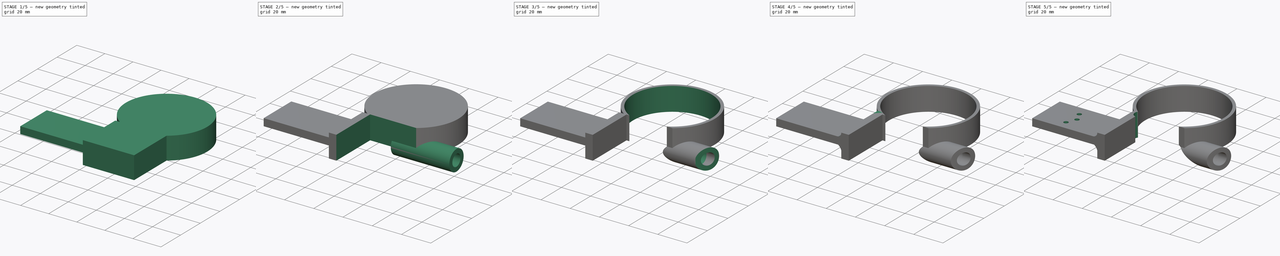
[diagram: build sequence overview — one tinted view per stage of 5, left to right]
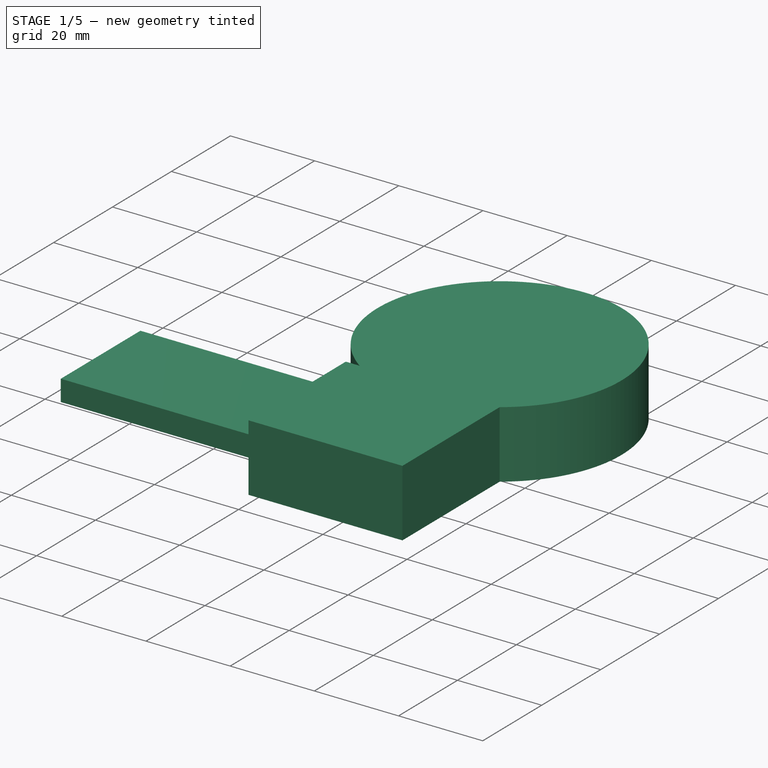
[diagram: stage 1 of 5 — iso view after this stage's code; geometry added in this stage tinted green]
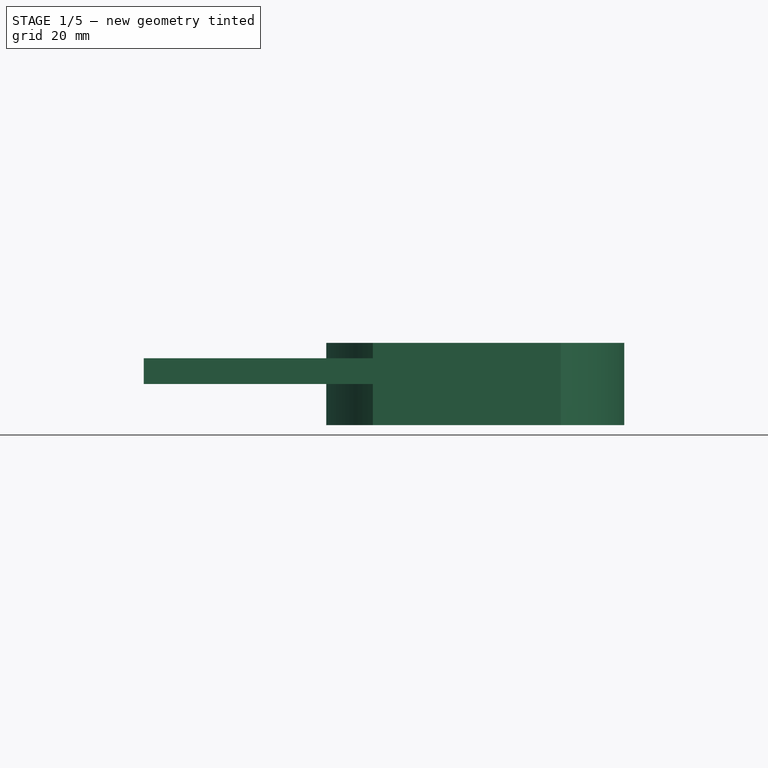
[diagram: stage 1 of 5 — front view after this stage's code; geometry added in this stage tinted green]
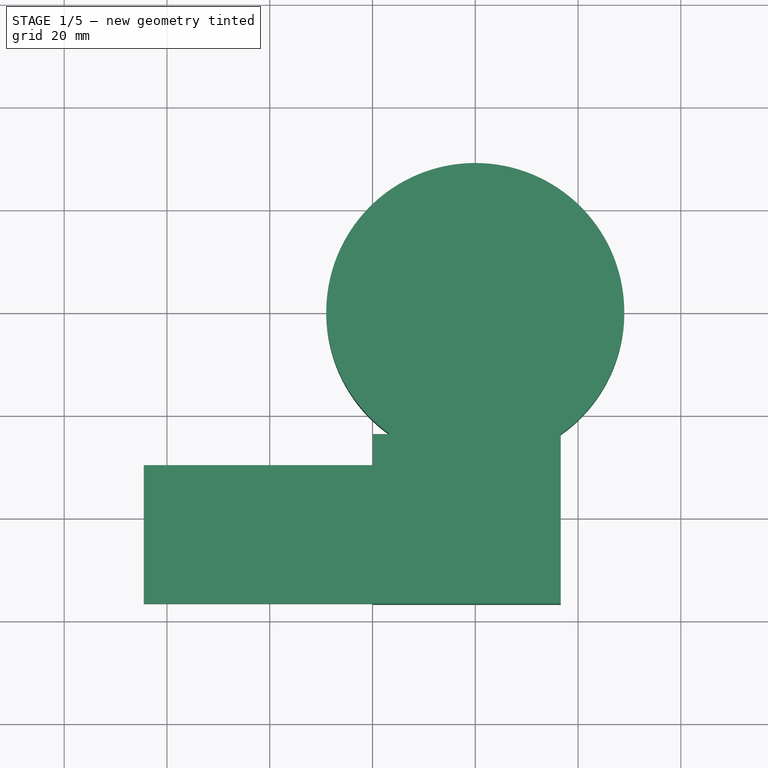
[diagram: stage 1 of 5 — top view after this stage's code; geometry added in this stage tinted green]
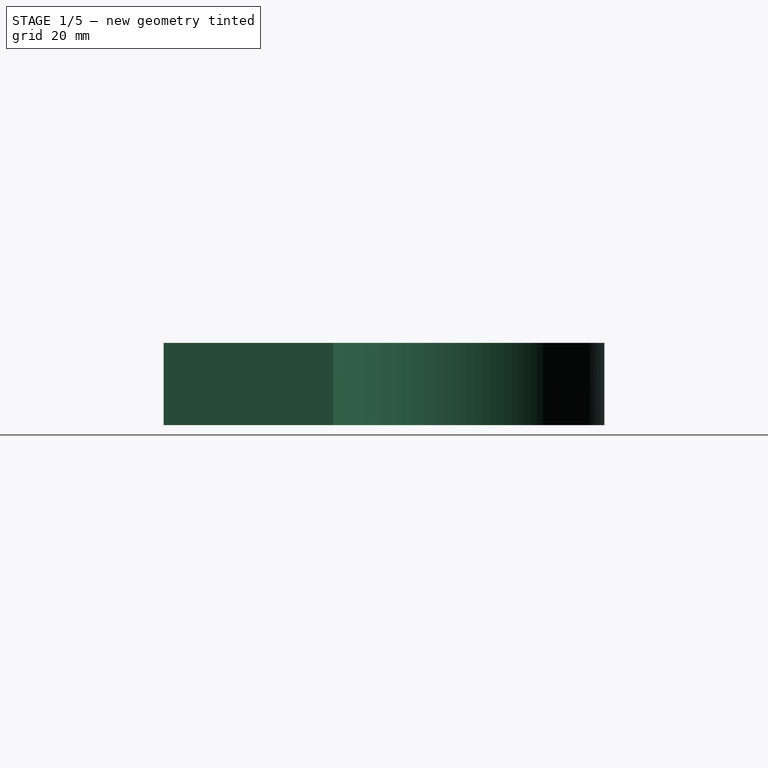
[diagram: stage 1 of 5 — right view after this stage's code; geometry added in this stage tinted green]
FCSTD DOCUMENT  (FreeCAD 1.0R38641 +468 (Git))
Label: RA-Half-Pipe
License: All rights reserved
LicenseURL: https://en.wikipedia.org/wiki/All_rights_reserved
objects: Sketcher::SketchObject×15, PartDesign::Pocket×8, PartDesign::Pad×7, PartDesign::Plane×1, PartDesign::Body×1
note: 77 computed .brp shape members not serialized (recipe doc carries the construction recipe); baked Part::Feature solids carry a one-line shape summary decoded from their .brp

FEATURE [PartDesign::Plane] DatumPlane
  AttachmentOffset = pos=(13,0,-41) rot=(0.819161,-0.529904,0.219493;0.936324rad)
  Length = 83.4188
  MapMode = 5
  Placement = pos=(24.3663,-13,0) rot=(0.470635,-0.815165,-0.337652;2.75653rad)
  ResizeMode = 0
  Width = 98.7692
FEATURE [Sketcher::SketchObject] Sketch045  label="CircleMain001"
  ArcFitTolerance = 1e-06
  AttachmentSupport = -> [XY_Plane008]
  FullyConstrained = true
  MakeInternals = false
  MapMode = 5
  sketch-geometry (2):
    g0: ArcOfCircle CenterX=0 CenterY=0 CenterZ=0 NormalX=0 NormalY=0 NormalZ=1 AngleXU=0 Radius=29 StartAngle=5.32325 EndAngle=10.3847
    g1: LineSegment StartX=-16.6337 StartY=-23.7554 StartZ=0 EndX=16.6337 EndY=-23.7554 EndZ=0
  constraints (6):
    c: Radius(g0) = 29
    c: Angle(g0) = 5.06145
    c: Coincident(g0,g-1)
    c: Coincident(g1,g0)
    c: Coincident(g1,g0)
    c: Horizontal(g1)
FEATURE [PartDesign::Pad] Pad026
  Direction = (0,0,1)
  Length = 16
  Length2 = 10
  Profile = -> Sketch045
  ReferenceAxis = -> Sketch045 [N_Axis]
  Refine = true
  Suppressed = false
  Type = 0
FEATURE [Sketcher::SketchObject] Sketch047  label="Rectangle001"
  ArcFitTolerance = 1e-06
  FullyConstrained = true
  MakeInternals = false
  MapMode = 5
  sketch-geometry (4):
    g0: LineSegment StartX=-19.9169 StartY=-23.7554 StartZ=0 EndX=-19.9169 EndY=-56.7554 EndZ=0
    g1: LineSegment StartX=-19.9169 StartY=-56.7554 StartZ=0 EndX=16.6337 EndY=-56.7554 EndZ=0
    g2: LineSegment StartX=16.6337 StartY=-56.7554 StartZ=0 EndX=16.6337 EndY=-23.7554 EndZ=0
    g3: LineSegment StartX=16.6337 StartY=-23.7554 StartZ=0 EndX=-19.9169 EndY=-23.7554 EndZ=0
  constraints (12):
    c: Coincident(g0,g1)
    c: Coincident(g1,g2)
    c: Coincident(g2,g3)
    c: Coincident(g3,g0)
    c: Vertical(g0)
    c: Vertical(g2)
    c: Horizontal(g1)
    c: Horizontal(g3)
    c: Distance(g1,g3) = 33
    c: DistanceY(g0,g-1) = 23.7554
    c: Distance(g-1,g0) = 31
    c: Distance(g-1,g2) = 29
FEATURE [PartDesign::Pad] Pad027
  BaseFeature = -> Pad026
  Direction = (0,0,1)
  Length = 16
  Length2 = 10
  Profile = -> Sketch047
  ReferenceAxis = -> Sketch047 [N_Axis]
  Refine = true
  Suppressed = false
  Type = 0
FEATURE [Sketcher::SketchObject] Sketch048  label="RectClear001"
  ArcFitTolerance = 1e-06
  FullyConstrained = true
  MakeInternals = false
  MapMode = 5
  sketch-geometry (4):
    g0: LineSegment StartX=-14.8216 StartY=-23.7554 StartZ=0 EndX=-14.8216 EndY=-58.7554 EndZ=0
    g1: LineSegment StartX=-14.8216 StartY=-58.7554 StartZ=0 EndX=18.3216 EndY=-58.7554 EndZ=0
    g2: LineSegment StartX=18.3216 StartY=-58.7554 StartZ=0 EndX=18.3216 EndY=-23.7554 EndZ=0
    g3: LineSegment StartX=18.3216 StartY=-23.7554 StartZ=0 EndX=-14.8216 EndY=-23.7554 EndZ=0
  constraints (12):
    c: Coincident(g0,g1)
    c: Coincident(g1,g2)
    c: Coincident(g2,g3)
    c: Coincident(g3,g0)
    c: Vertical(g0)
    c: Vertical(g2)
    c: Horizontal(g1)
    c: Horizontal(g3)
    c: Distance(g1,g3) = 35
    c: DistanceY(g0,g-1) = 23.7554
    c: Distance(g0,g-1) = 28
    c: Distance(g-1,g2) = 30
FEATURE [Sketcher::SketchObject] Sketch049
  ArcFitTolerance = 1e-06
  FullyConstrained = true
  MakeInternals = false
  MapMode = 5
  Placement = pos=(-19.9169,0,0) rot=(0.57735,-0.57735,-0.57735;2.0944rad)
  sketch-geometry (4):
    g0: LineSegment StartX=29.7554 StartY=13 StartZ=0 EndX=29.7554 EndY=8 EndZ=0
    g1: LineSegment StartX=29.7554 StartY=8 StartZ=0 EndX=56.7554 EndY=8 EndZ=0
    g2: LineSegment StartX=56.7554 StartY=8 StartZ=0 EndX=56.7554 EndY=13 EndZ=0
    g3: LineSegment StartX=56.7554 StartY=13 StartZ=0 EndX=29.7554 EndY=13 EndZ=0
  constraints (12):
    c: Coincident(g0,g1)
    c: Coincident(g1,g2)
    c: Coincident(g2,g3)
    c: Coincident(g3,g0)
    c: Vertical(g0)
    c: Vertical(g2)
    c: Horizontal(g1)
    c: Horizontal(g3)
    c: Distance(g0,g2) = 27
    c: Distance(g1,g3) = 5
    c: DistanceX(g-1,g0) = 29.7554
    c: DistanceY(g-1,g0) = 8
FEATURE [PartDesign::Pad] Pad028
  BaseFeature = -> Pad027
  Direction = (-1,1e-16,-1e-16)
  Length = 44.6
  Length2 = 10
  Profile = -> Sketch049
  ReferenceAxis = -> Sketch049 [N_Axis]
  Refine = true
  Suppressed = false
  Type = 0
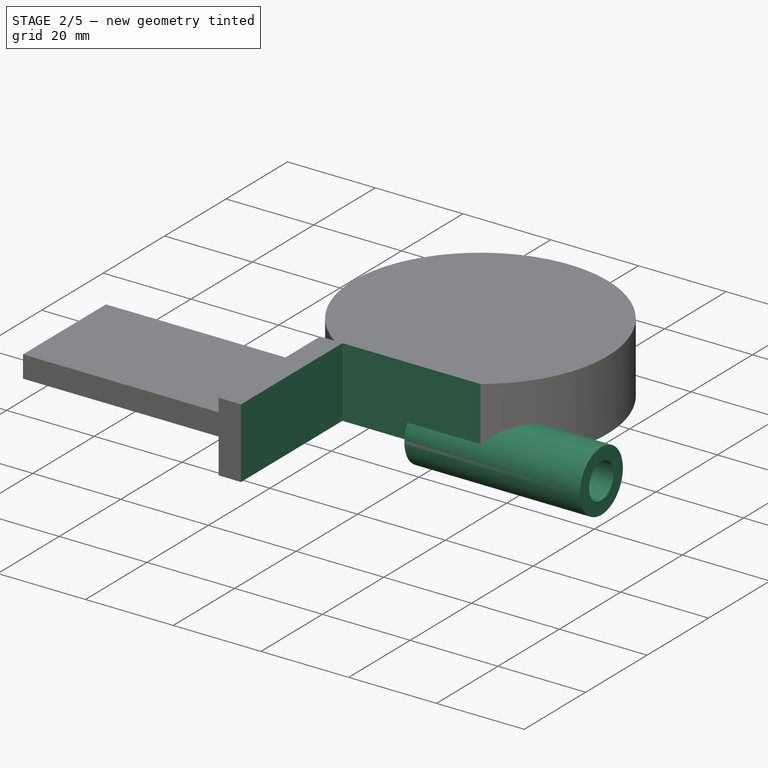
[diagram: stage 2 of 5 — iso view after this stage's code; geometry added in this stage tinted green]
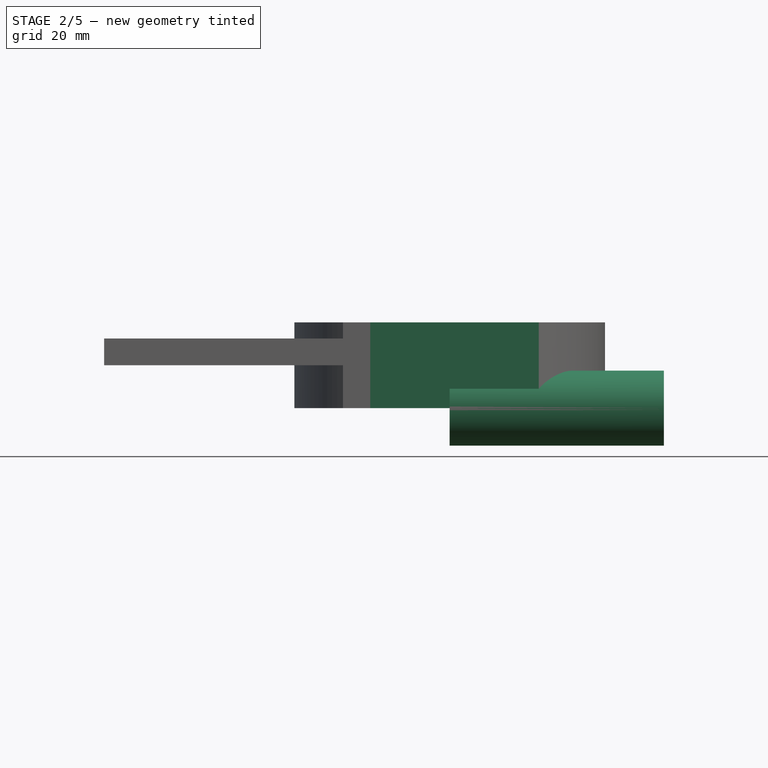
[diagram: stage 2 of 5 — front view after this stage's code; geometry added in this stage tinted green]
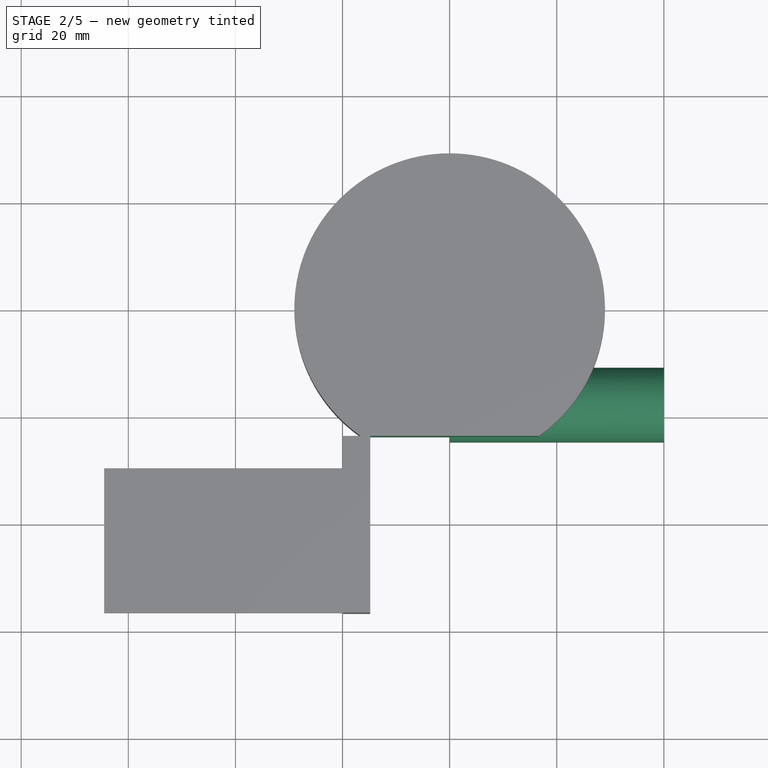
[diagram: stage 2 of 5 — top view after this stage's code; geometry added in this stage tinted green]
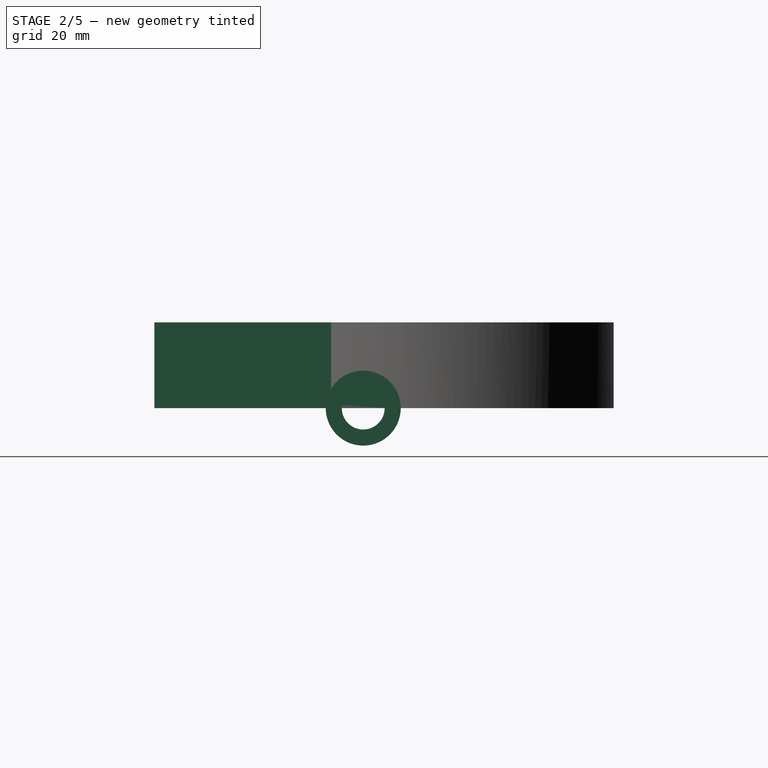
[diagram: stage 2 of 5 — right view after this stage's code; geometry added in this stage tinted green]
FEATURE [PartDesign::Pocket] Pocket031
  BaseFeature = -> Pad028
  Direction = (0,0,-1)
  Length = 16
  Length2 = 5
  Profile = -> Sketch048
  ReferenceAxis = -> Sketch048 [N_Axis]
  Refine = true
  Reversed = true
  Suppressed = false
  Type = 0
FEATURE [Sketcher::SketchObject] Sketch062
  ArcFitTolerance = 1e-06
  AttachmentSupport = -> [YZ_Plane008]
  FullyConstrained = false
  MakeInternals = false
  MapMode = 5
  Placement = pos=(0,0,0) rot=(0.57735,0.57735,0.57735;2.0944rad)
  sketch-geometry (1):
    g0: Circle CenterX=-17.7554 CenterY=0 CenterZ=0 NormalX=0 NormalY=0 NormalZ=1 AngleXU=0 Radius=7
  constraints (2):
    c: Diameter(g0) = 14
    c: DistanceX(g0,g-1) = 17.7554
FEATURE [PartDesign::Pad] Pad029
  BaseFeature = -> Pocket031
  Direction = (1,0,0)
  Length = 40
  Length2 = 10
  Profile = -> Sketch062
  ReferenceAxis = -> Sketch062 [N_Axis]
  Refine = true
  Suppressed = false
  Type = 0
FEATURE [Sketcher::SketchObject] Sketch063
  ArcFitTolerance = 1e-06
  AttachmentSupport = -> [YZ_Plane008]
  FullyConstrained = false
  MakeInternals = false
  MapMode = 5
  Placement = pos=(0,0,0) rot=(0.57735,0.57735,0.57735;2.0944rad)
  sketch-geometry (1):
    g0: Circle CenterX=-17.7554 CenterY=0 CenterZ=0 NormalX=0 NormalY=0 NormalZ=1 AngleXU=0 Radius=4
  constraints (2):
    c: Diameter(g0) = 8
    c: DistanceX(g0,g-1) = 17.7554
FEATURE [PartDesign::Pocket] Pocket032
  BaseFeature = -> Pad029
  Direction = (-1,0,0)
  Length = 42
  Length2 = 5
  Profile = -> Sketch063
  ReferenceAxis = -> Sketch063 [N_Axis]
  Refine = true
  Reversed = true
  Suppressed = false
  Type = 0
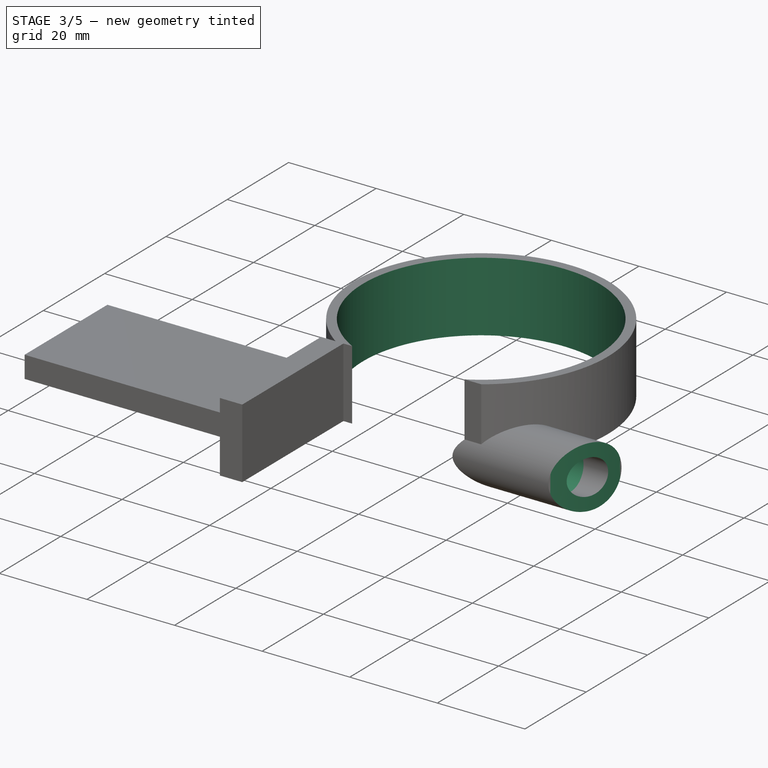
[diagram: stage 3 of 5 — iso view after this stage's code; geometry added in this stage tinted green]
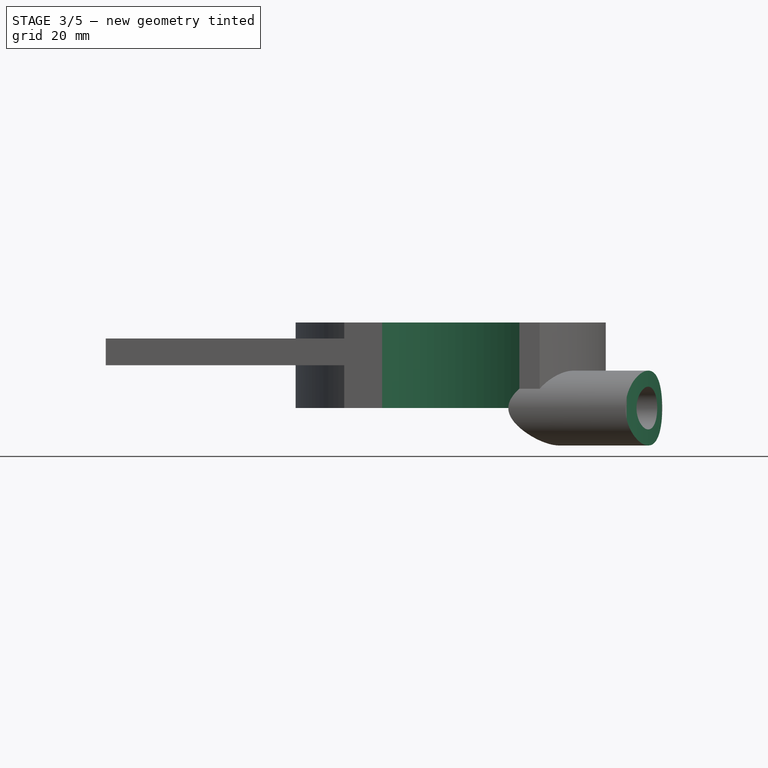
[diagram: stage 3 of 5 — front view after this stage's code; geometry added in this stage tinted green]
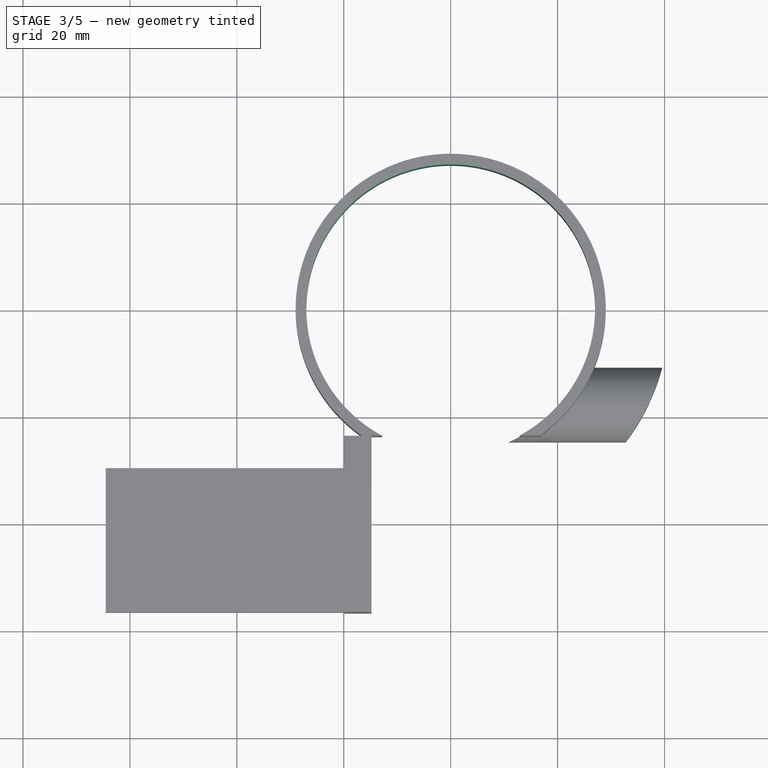
[diagram: stage 3 of 5 — top view after this stage's code; geometry added in this stage tinted green]
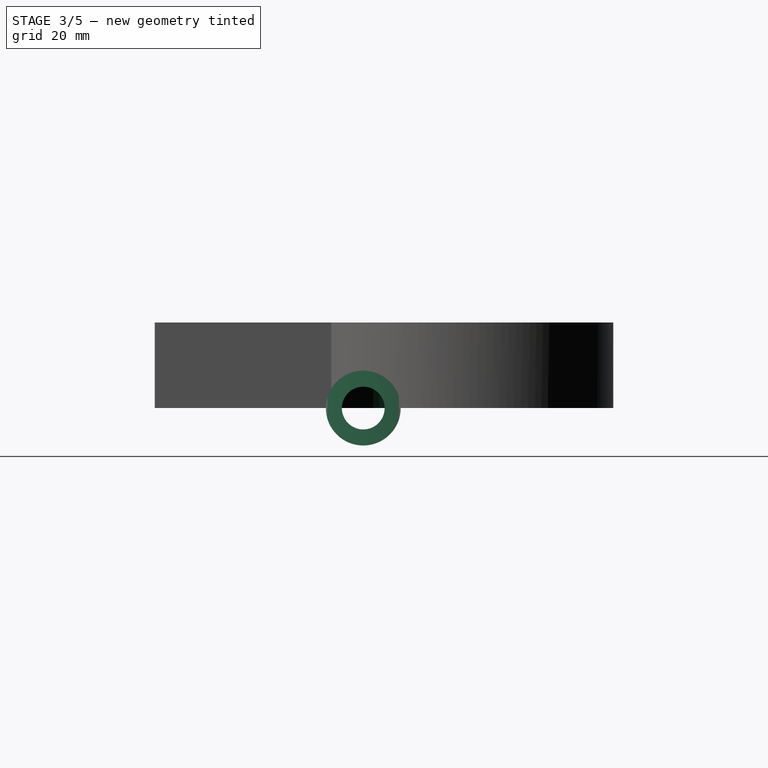
[diagram: stage 3 of 5 — right view after this stage's code; geometry added in this stage tinted green]
FEATURE [Sketcher::SketchObject] Sketch065
  ArcFitTolerance = 1e-06
  FullyConstrained = false
  MakeInternals = false
  MapMode = 5
  Placement = pos=(0,0,0) rot=(0.57735,0.57735,0.57735;2.0944rad)
  sketch-geometry (1):
    g0: Circle CenterX=-17.7554 CenterY=0 CenterZ=0 NormalX=0 NormalY=0 NormalZ=1 AngleXU=0 Radius=5.1
  constraints (2):
    c: Diameter(g0) = 10.2
    c: DistanceX(g0,g-1) = 17.7554
FEATURE [PartDesign::Pocket] Pocket033
  BaseFeature = -> Pocket032
  Direction = (-1,-1e-16,1e-16)
  Length = 33
  Length2 = 5
  Profile = -> Sketch065
  ReferenceAxis = -> Sketch065 [N_Axis]
  Refine = true
  Reversed = true
  Suppressed = false
  Type = 0
FEATURE [Sketcher::SketchObject] Sketch067
  ArcFitTolerance = 1e-06
  FullyConstrained = true
  MakeInternals = false
  MapMode = 5
  Placement = pos=(0,0,0) rot=(1,0,0;3.14159rad)
  sketch-geometry (1):
    g0: Circle CenterX=0 CenterY=0 CenterZ=0 NormalX=0 NormalY=0 NormalZ=1 AngleXU=0 Radius=27
  constraints (2):
    c: Diameter(g0) = 54
    c: Coincident(g0,g-1)
FEATURE [PartDesign::Pocket] Pocket034
  BaseFeature = -> Pocket033
  Direction = (0,1e-16,1)
  Length = 16
  Length2 = 16
  Profile = -> Sketch067
  ReferenceAxis = -> Sketch067 [N_Axis]
  Refine = true
  Suppressed = false
  Type = 4
FEATURE [Sketcher::SketchObject] Sketch068
  ArcFitTolerance = 1e-06
  AttachmentSupport = -> [DatumPlane]
  FullyConstrained = true
  MakeInternals = false
  MapMode = 5
  Placement = pos=(24.3663,-13,1.8e-15) rot=(-0.470635,0.815165,0.337652;3.52665rad)
  sketch-geometry (4):
    g0: LineSegment StartX=-3.56 StartY=8.5 StartZ=0 EndX=-3.56 EndY=-14.5 EndZ=0
    g1: LineSegment StartX=-3.56 StartY=-14.5 StartZ=0 EndX=17.04 EndY=-14.5 EndZ=0
    g2: LineSegment StartX=17.04 StartY=-14.5 StartZ=0 EndX=17.04 EndY=8.5 EndZ=0
    g3: LineSegment StartX=17.04 StartY=8.5 StartZ=0 EndX=-3.56 EndY=8.5 EndZ=0
  constraints (12):
    c: Coincident(g0,g1)
    c: Coincident(g1,g2)
    c: Coincident(g2,g3)
    c: Coincident(g3,g0)
    c: Vertical(g0)
    c: Vertical(g2)
    c: Horizontal(g1)
    c: Horizontal(g3)
    c: Distance(g0,g2) = 20.6
    c: Distance(g1,g3) = 23
    c: DistanceY(g0,g-1) = 14.5
    c: DistanceX(g-1,g2) = 17.04
FEATURE [Sketcher::SketchObject] Sketch069
  ArcFitTolerance = 1e-06
  FullyConstrained = false
  MakeInternals = false
  MapMode = 5
  Placement = pos=(0,0,16) rot=(0,0,1;0rad)
  sketch-geometry (4):
    g0: ArcOfCircle CenterX=0 CenterY=0 CenterZ=0 NormalX=0 NormalY=0 NormalZ=1 AngleXU=0 Radius=41 StartAngle=5.27126 EndAngle=6.16934
    g1: LineSegment StartX=40.7346 StartY=-4.65775 StartZ=0 EndX=77.4836 EndY=-4.65775 EndZ=0
    g2: LineSegment StartX=77.4836 StartY=-4.65775 StartZ=0 EndX=77.4836 EndY=-35.6514 EndZ=0
    g3: LineSegment StartX=21.7395 StartY=-34.762 StartZ=0 EndX=77.4836 EndY=-35.6514 EndZ=0
  constraints (8):
    c: Radius(g0) = 41
    c: Coincident(g0,g-1)
    c: Coincident(g1,g0)
    c: Horizontal(g1)
    c: Coincident(g2,g1)
    c: Vertical(g2)
    c: Coincident(g3,g0)
    c: Coincident(g3,g2)
FEATURE [PartDesign::Pocket] Pocket050
  BaseFeature = -> Pocket034
  Direction = (0,0,-1)
  Length = 23
  Length2 = 5
  Profile = -> Sketch069
  ReferenceAxis = -> Sketch069 [N_Axis]
  Refine = true
  Suppressed = false
  Type = 0
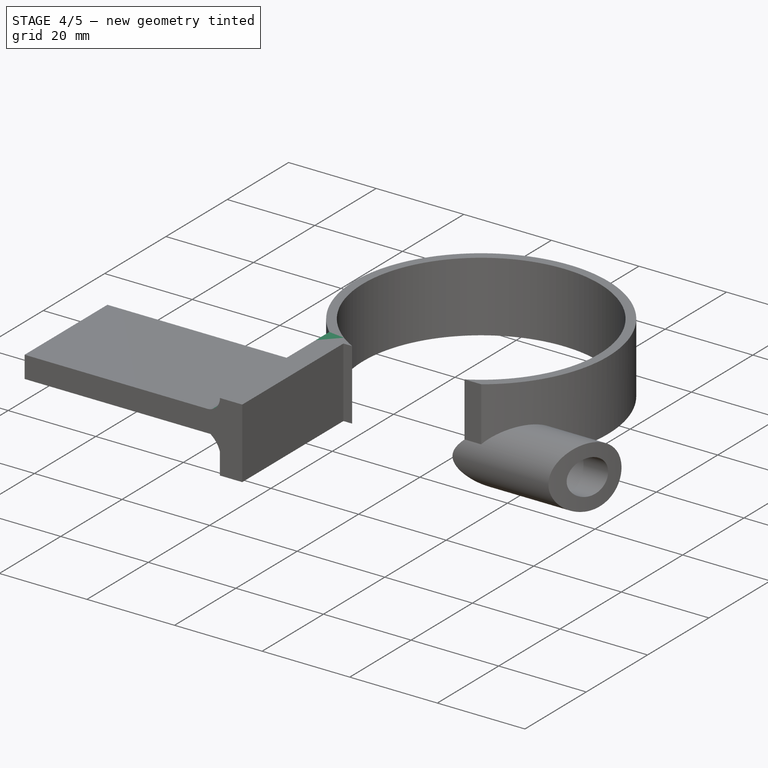
[diagram: stage 4 of 5 — iso view after this stage's code; geometry added in this stage tinted green]
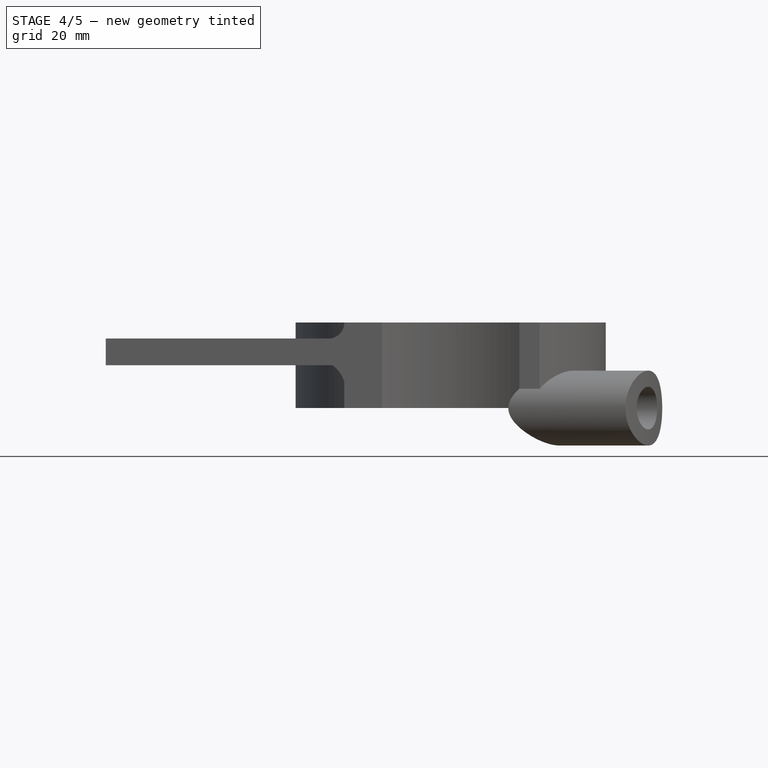
[diagram: stage 4 of 5 — front view after this stage's code; geometry added in this stage tinted green]
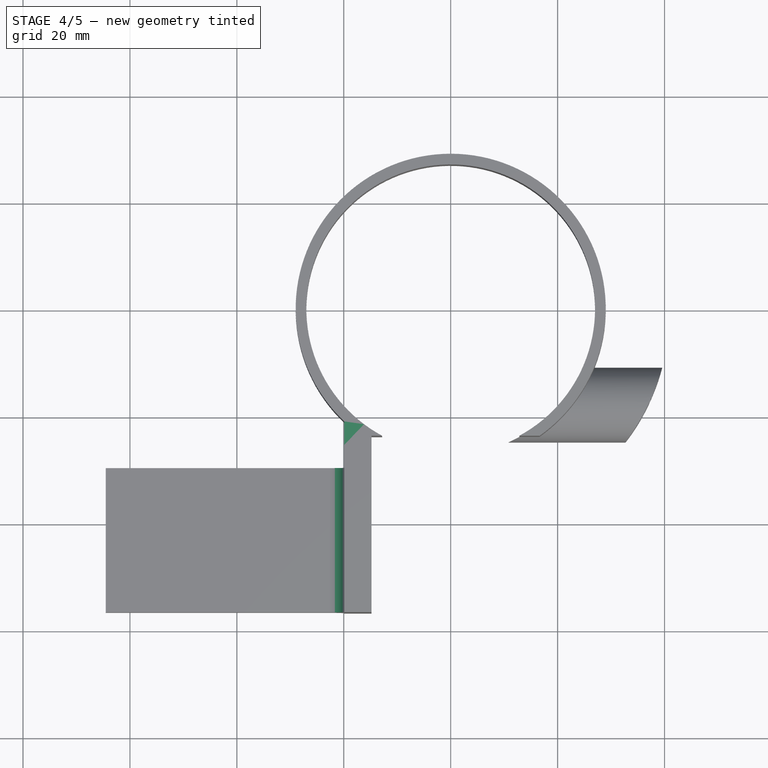
[diagram: stage 4 of 5 — top view after this stage's code; geometry added in this stage tinted green]
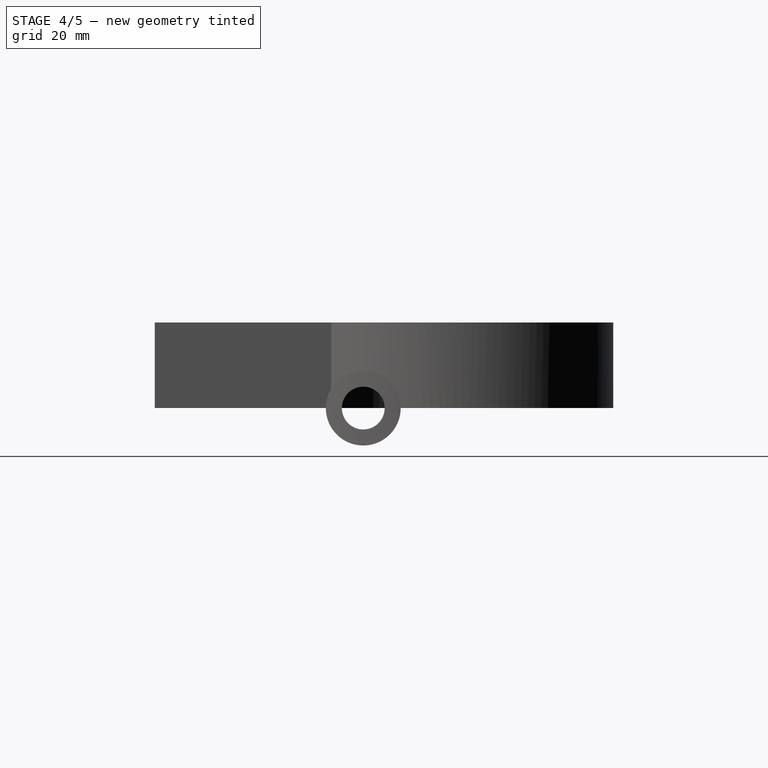
[diagram: stage 4 of 5 — right view after this stage's code; geometry added in this stage tinted green]
FEATURE [Sketcher::SketchObject] Sketch070
  ArcFitTolerance = 1e-06
  FullyConstrained = true
  MakeInternals = false
  MapMode = 5
  Placement = pos=(0,0,0) rot=(1,0,0;3.14159rad)
  sketch-geometry (1):
    g0: Circle CenterX=-13.85 CenterY=23 CenterZ=0 NormalX=0 NormalY=0 NormalZ=1 AngleXU=0 Radius=4
  constraints (3):
    c: Diameter(g0) = 8
    c: DistanceY(g-1,g0) = 23
    c: DistanceX(g0,g-1) = 13.85
FEATURE [Sketcher::SketchObject] Sketch072
  ArcFitTolerance = 1e-06
  FullyConstrained = false
  MakeInternals = false
  MapMode = 5
  Placement = pos=(0,0,0) rot=(1,0,0;3.14159rad)
  sketch-geometry (3):
    g0: LineSegment StartX=-19.92 StartY=25.4781 StartZ=0 EndX=-19.92 EndY=19.5781 EndZ=0
    g1: LineSegment StartX=-19.92 StartY=19.5781 StartZ=0 EndX=-15.1 EndY=25.4781 EndZ=0
    g2: LineSegment StartX=-19.92 StartY=25.4781 StartZ=0 EndX=-15.1 EndY=25.4781 EndZ=0
  constraints (8):
    c: Distance(g0) = 5.9
    c: Vertical(g0)
    c: Coincident(g1,g0)
    c: Coincident(g2,g0)
    c: Coincident(g2,g1)
    c: Horizontal(g2)
    c: DistanceX(g1,g-1) = 15.1
    c: DistanceX(g0,g-1) = 19.92
FEATURE [PartDesign::Pad] Pad044
  BaseFeature = -> Pocket050
  Direction = (0,-1e-16,-1)
  Length = 16
  Length2 = 10
  Profile = -> Sketch072
  ReferenceAxis = -> Sketch072 [N_Axis]
  Refine = true
  Reversed = true
  Suppressed = false
  Type = 0
FEATURE [Sketcher::SketchObject] Sketch099
  ArcFitTolerance = 1e-06
  FullyConstrained = true
  MakeInternals = false
  MapMode = 5
  Placement = pos=(-9e-16,-1.8e-15,8) rot=(1,0,0;3.14159rad)
  sketch-geometry (3):
    g0: Circle CenterX=-45.92 CenterY=37.2554 CenterZ=0 NormalX=0 NormalY=0 NormalZ=1 AngleXU=0 Radius=1.5
    g1: Circle CenterX=-45.92 CenterY=50.2554 CenterZ=0 NormalX=0 NormalY=0 NormalZ=1 AngleXU=0 Radius=1.5
    g2: Circle CenterX=-42.92 CenterY=43.7554 CenterZ=0 NormalX=0 NormalY=0 NormalZ=1 AngleXU=0 Radius=1.5
  constraints (9):
    c: Diameter(g0) = 3
    c: DistanceX(g0,g-1) = 45.92
    c: DistanceY(g-1,g0) = 37.2554
    c: Diameter(g1) = 3
    c: DistanceY(g0,g1) = 13
    c: Diameter(g2) = 3
    c: DistanceY(g0,g2) = 6.5
    c: DistanceX(g1,g0) = 0
    c: DistanceX(g0,g2) = 3
FEATURE [Sketcher::SketchObject] Sketch100
  ArcFitTolerance = 1e-06
  FullyConstrained = false
  MakeInternals = false
  MapMode = 5
  Placement = pos=(0,-55.7554,0) rot=(1,0,0;1.5708rad)
  sketch-geometry (3):
    g0: ArcOfCircle CenterX=-25.6465 CenterY=3.16554 CenterZ=0 NormalX=0 NormalY=0 NormalZ=1 AngleXU=0 Radius=5.99829 StartAngle=6.25195 EndAngle=7.84028
    g1: LineSegment StartX=-25.5644 StartY=9.16327 StartZ=0 EndX=-16.9375 EndY=9.62884 EndZ=0
    g2: LineSegment StartX=-19.6512 StartY=2.97819 StartZ=0 EndX=-16.9375 EndY=9.62884 EndZ=0
  constraints (3):
    c: Coincident(g1,g0)
    c: Coincident(g2,g0)
    c: Coincident(g2,g1)
FEATURE [Sketcher::SketchObject] Sketch101
  ArcFitTolerance = 1e-06
  FullyConstrained = false
  MakeInternals = false
  MapMode = 5
  Placement = pos=(0,-55.7554,-1.62e-14) rot=(1,0,0;1.5708rad)
  sketch-geometry (3):
    g0: ArcOfCircle CenterX=-22.9 CenterY=15.99 CenterZ=0 NormalX=0 NormalY=0 NormalZ=1 AngleXU=0 Radius=3 StartAngle=4.64932 EndAngle=6.22012
    g1: LineSegment StartX=-23.0891 StartY=12.996 StartZ=0 EndX=-17.1616 EndY=10.394 EndZ=0
    g2: LineSegment StartX=-19.906 StartY=15.8009 StartZ=0 EndX=-17.1616 EndY=10.394 EndZ=0
  constraints (7):
    c: Radius(g0) = 3
    c: Angle(g0) = 1.5708
    c: Coincident(g1,g0)
    c: Coincident(g2,g0)
    c: Coincident(g2,g1)
    c: DistanceX(g0,g-1) = 22.9
    c: DistanceY(g-1,g0) = 15.99
FEATURE [PartDesign::Pad] Pad045
  BaseFeature = -> Pad044
  Direction = (0,-1,2e-16)
  Length = 26
  Length2 = 1
  Profile = -> Sketch101
  ReferenceAxis = -> Sketch101 [N_Axis]
  Refine = true
  Reversed = true
  Suppressed = false
  Type = 4
FEATURE [PartDesign::Pad] Pad046
  BaseFeature = -> Pad045
  Direction = (0,-1,2e-16)
  Length = 26
  Length2 = 1
  Profile = -> Sketch100
  ReferenceAxis = -> Sketch100 [N_Axis]
  Refine = true
  Reversed = true
  Suppressed = false
  Type = 4
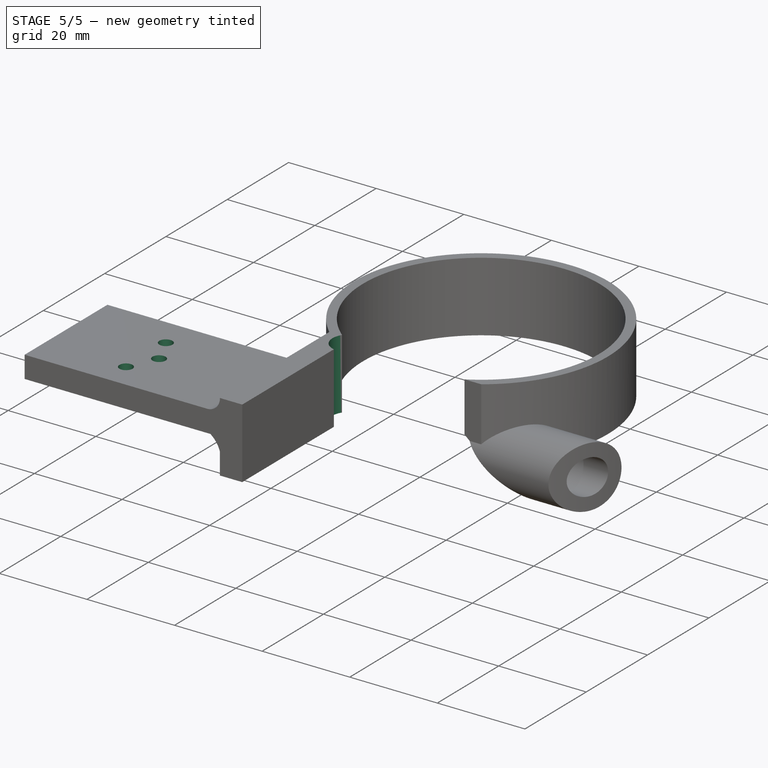
[diagram: stage 5 of 5 — iso view after this stage's code; geometry added in this stage tinted green]
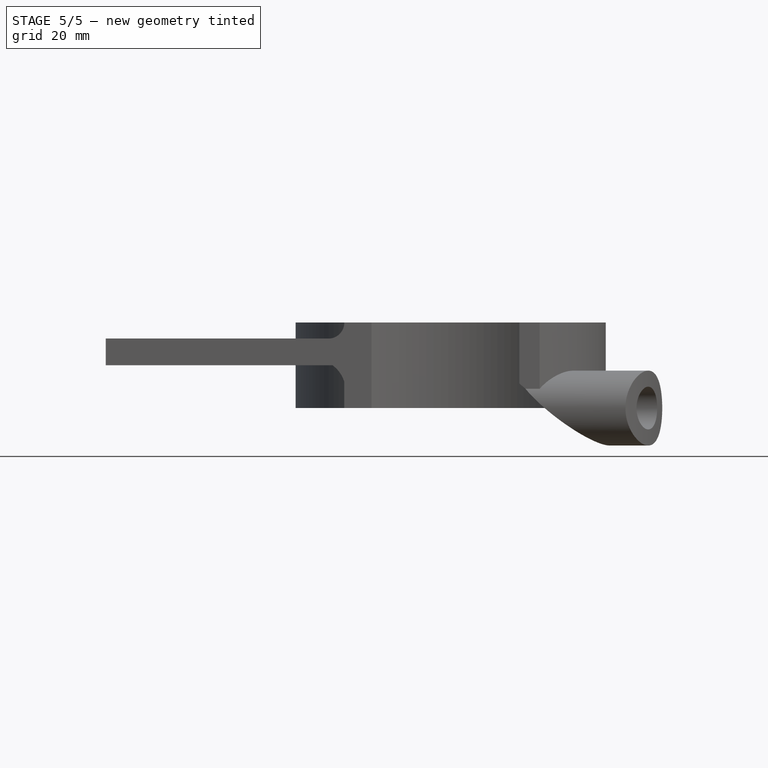
[diagram: stage 5 of 5 — front view after this stage's code; geometry added in this stage tinted green]
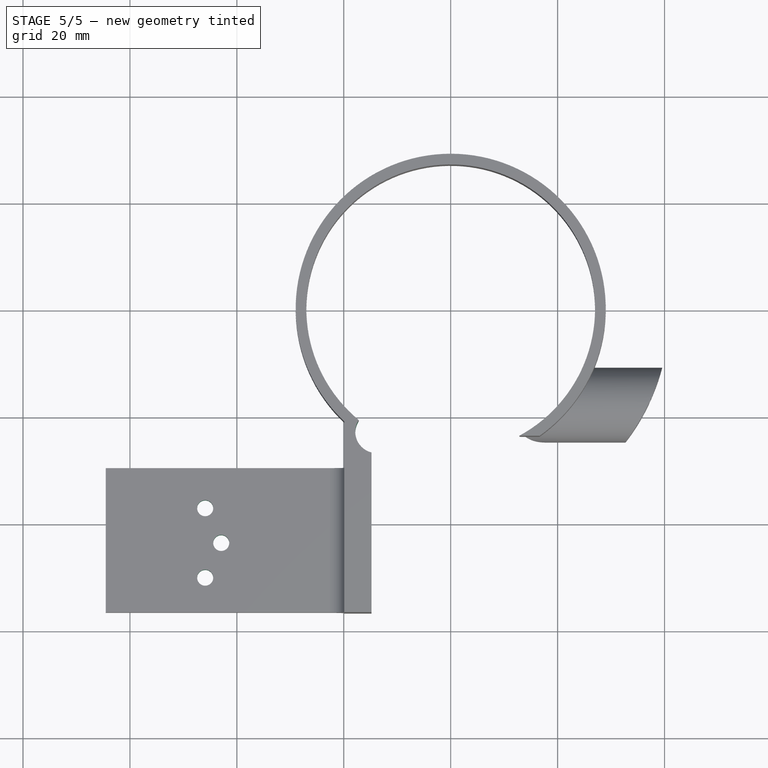
[diagram: stage 5 of 5 — top view after this stage's code; geometry added in this stage tinted green]
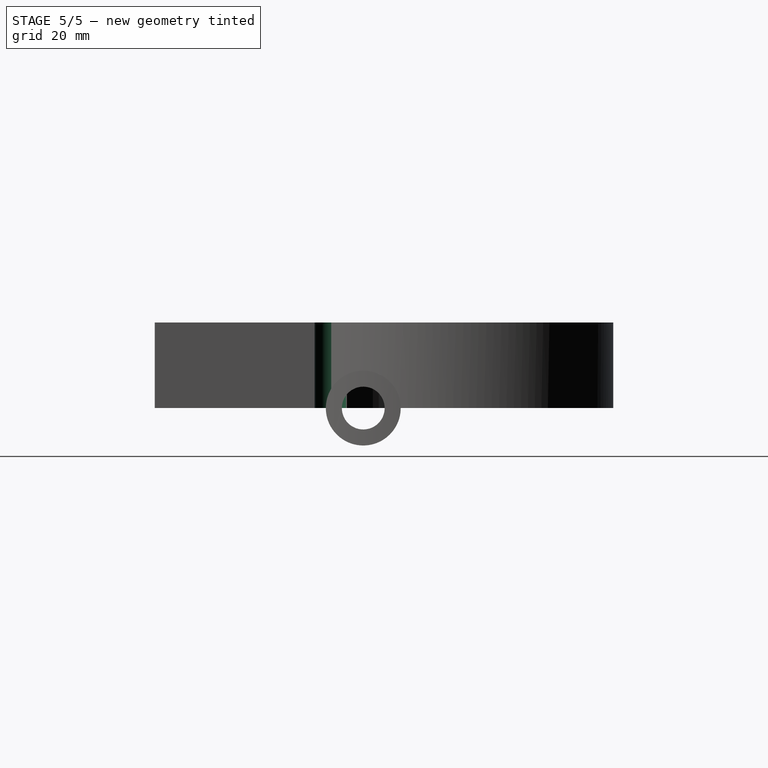
[diagram: stage 5 of 5 — right view after this stage's code; geometry added in this stage tinted green]
FEATURE [PartDesign::Pocket] Pocket051
  BaseFeature = -> Pad046
  Direction = (0,1e-16,1)
  Length = 5
  Length2 = 5
  Profile = -> Sketch099
  ReferenceAxis = -> Sketch099 [N_Axis]
  Refine = true
  Suppressed = false
  Type = 0
FEATURE [PartDesign::Pocket] Pocket052
  BaseFeature = -> Pocket051
  Direction = (0.612372,-0.353553,0.707107)
  Length = 7
  Length2 = 5
  Profile = -> Sketch068
  ReferenceAxis = -> Sketch068 [N_Axis]
  Refine = true
  Reversed = true
  Suppressed = false
  Type = 0
FEATURE [PartDesign::Pocket] Pocket053
  BaseFeature = -> Pocket052
  Direction = (0,1e-16,1)
  Length = 16
  Length2 = 5
  Profile = -> Sketch070
  ReferenceAxis = -> Sketch070 [N_Axis]
  Refine = true
  Suppressed = false
  Type = 0
FEATURE [PartDesign::Body] Body008  label="RA-Half-Pipe"
  AllowCompound = false
  Group = -> [Sketch045,Sketch047,Sketch048,Sketch049,Pad026,Sketch062,Sketch063,Sketch065,Sketch067,DatumPlane,Sketch068,Sketch069,Sketch070,Pad027,Pad028,Pocket031,Pad029,Pocket032,Pocket033,Pocket034,Sketch072,Sketch099,Sketch100,Sketch101,Pocket050,Pad044,Pad045,Pad046,Pocket051,Pocket052,Pocket053]
  Origin = -> Origin008
  Tip = -> Pocket053
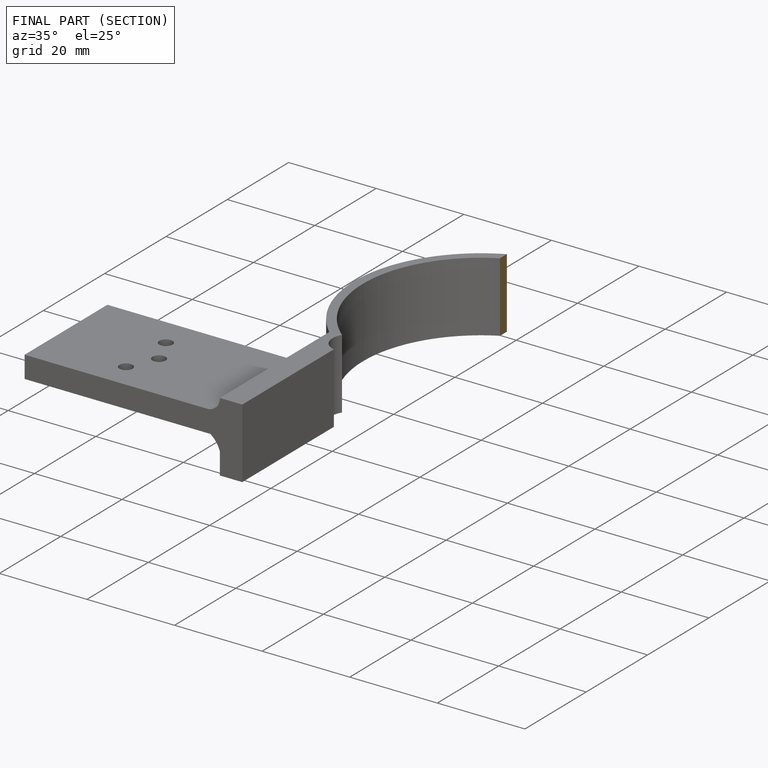
[diagram: finished part — half-section view (interior)]
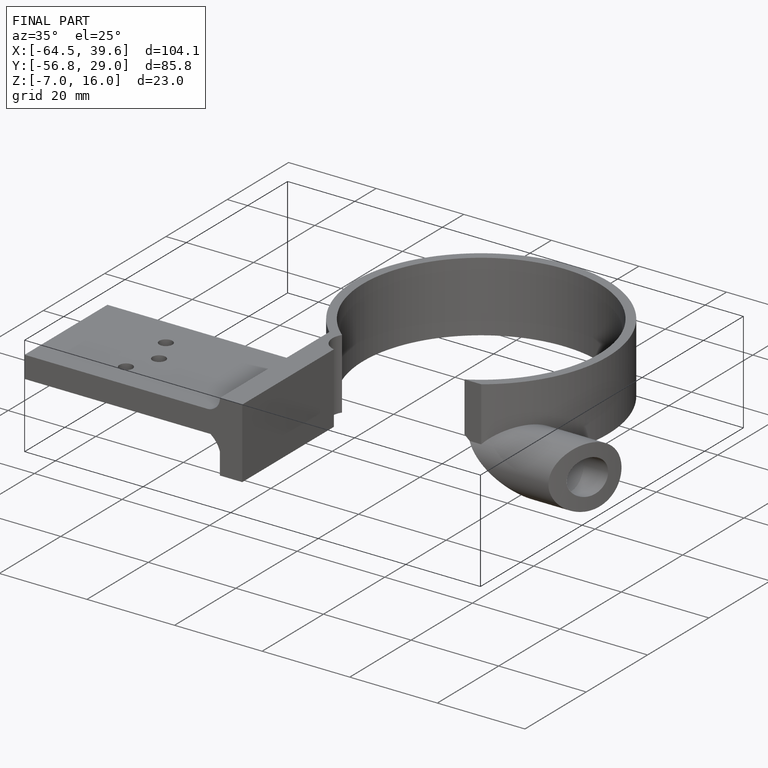
[diagram: finished part — iso view with bounding-box wireframe]
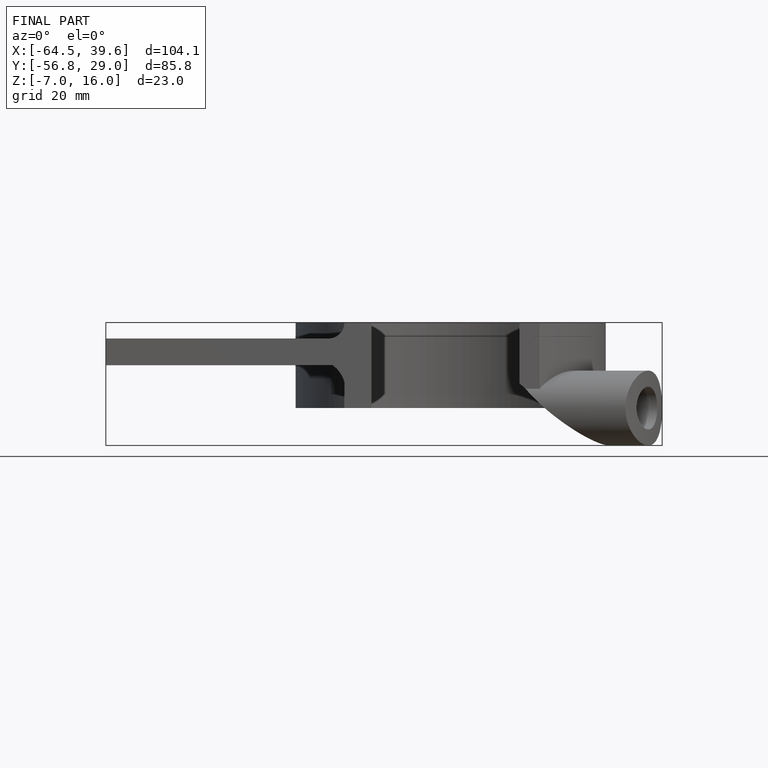
[diagram: finished part — front view with bounding-box wireframe]
